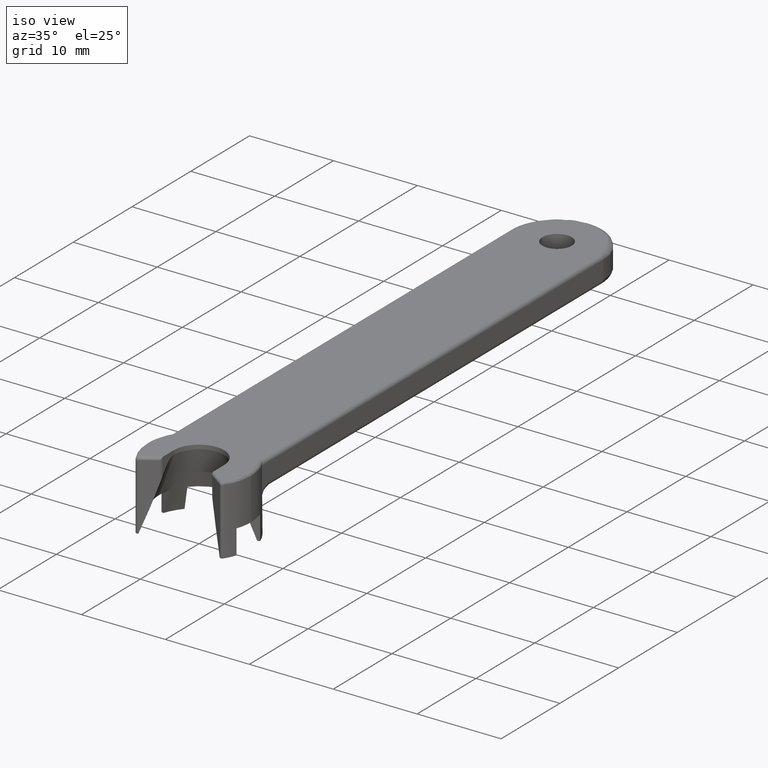
[diagram: clean part render]
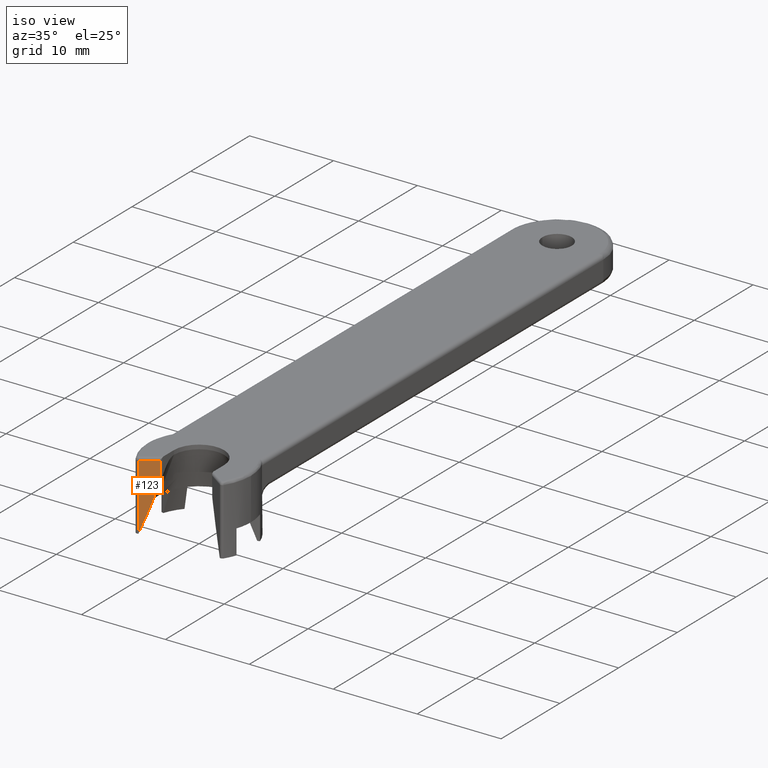
[diagram: same view with one face highlighted and labeled with its STEP entity id]
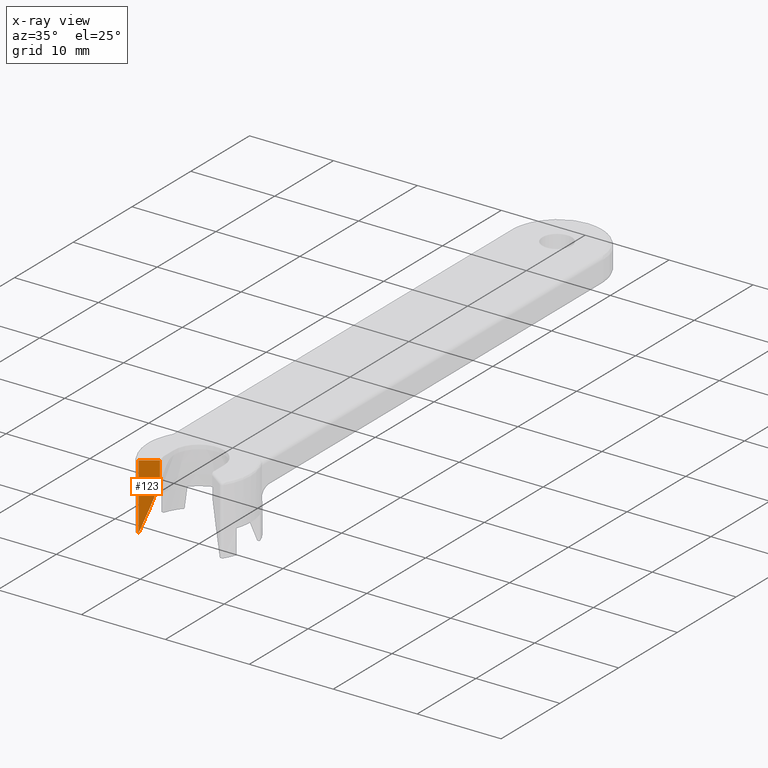
[diagram: x-ray of the same camera — body ghosted, the highlighted face saturated]
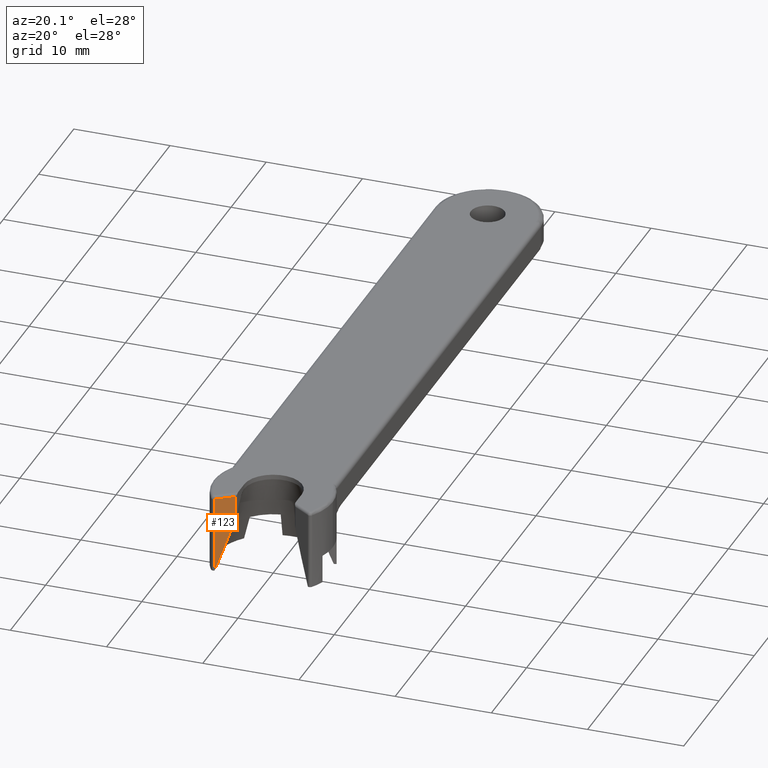
[diagram: same view with one face highlighted and labeled with its STEP entity id]
A machine part, iso view. The second image highlights one B-rep face of the part: STEP entity #123.
The next image is the same camera in x-ray: the body ghosted, the highlighted face saturated — about 0% of this face is hidden behind the body in this view.
A second angle (auxiliary view) of the same face is appended — the face is thin or edge-on in the first view.
In plain terms, the highlighted planar face has unit normal (-0.5736, 0.8192, 0).
Its self-contained STEP definition (entity closure, byte-faithful):
#123 = ADVANCED_FACE ( 'NONE', ( #2159 ), #782, .F. ) ;
#207 = LINE ( 'NONE', #1316, #269 ) ;
#236 = DIRECTION ( 'NONE',  ( -0.2801664995494923500, -0.1961746949641835800, -0.9396926207999581900 ) ) ;
#269 = VECTOR ( 'NONE', #236, 999.9999999999998900 ) ;
#349 = CARTESIAN_POINT ( 'NONE',  ( -4.826745247799452800, -3.379723407810190300, -0.3000000000615318800 ) ) ;
#368 = ORIENTED_EDGE ( 'NONE', *, *, #1975, .F. ) ;
#382 = LINE ( 'NONE', #1956, #1694 ) ;
#402 = VECTOR ( 'NONE', #1125, 1000.000000000000000 ) ;
#459 = EDGE_CURVE ( 'NONE', #1544, #1436, #701, .T. ) ;
#556 = CARTESIAN_POINT ( 'NONE',  ( -3.127927069066667200, -2.190198112649896200, -2.748793458010642800 ) ) ;
#633 = CARTESIAN_POINT ( 'NONE',  ( -4.826745247971784300, -3.379723407357909900, -8.134743755901199700 ) ) ;
#701 = LINE ( 'NONE', #1467, #402 ) ;
#723 = ORIENTED_EDGE ( 'NONE', *, *, #459, .T. ) ;
#782 = PLANE ( 'NONE',  #1029 ) ;
#788 = ORIENTED_EDGE ( 'NONE', *, *, #1669, .F. ) ;
#860 = LINE ( 'NONE', #891, #2268 ) ;
#891 = CARTESIAN_POINT ( 'NONE',  ( -3.127927069000000500, -2.190198112999999700, -4.217371877499998900 ) ) ;
#1029 = AXIS2_PLACEMENT_3D ( 'NONE', #2004, #2307, #1375 ) ;
#1050 = ORIENTED_EDGE ( 'NONE', *, *, #2013, .T. ) ;
#1125 = DIRECTION ( 'NONE',  ( -0.0000000000000000000, -0.0000000000000000000, -1.000000000000000000 ) ) ;
#1192 = VECTOR ( 'NONE', #1824, 1000.000000000000000 ) ;
#1290 = CARTESIAN_POINT ( 'NONE',  ( -3.127927068815076000, -2.190198112883328600, -0.3000000001131590800 ) ) ;
#1316 = CARTESIAN_POINT ( 'NONE',  ( -2.448869500063624500, -1.714716884261920500, -0.4712000000000000100 ) ) ;
#1320 = EDGE_CURVE ( 'NONE', #1575, #1436, #2139, .T. ) ;
#1321 = VERTEX_POINT ( 'NONE', #556 ) ;
#1375 = DIRECTION ( 'NONE',  ( 0.0000000000000000000, 0.0000000000000000000, -1.000000000000000000 ) ) ;
#1409 = EDGE_LOOP ( 'NONE', ( #723, #2100, #788, #368, #1050 ) ) ;
#1424 = DIRECTION ( 'NONE',  ( -0.8191520443400938100, -0.5735764362780648700, -0.0000000000000000000 ) ) ;
#1436 = VERTEX_POINT ( 'NONE', #633 ) ;
#1467 = CARTESIAN_POINT ( 'NONE',  ( -4.826745247992137800, -3.379723407214893200, -4.249999999999999100 ) ) ;
#1544 = VERTEX_POINT ( 'NONE', #349 ) ;
#1575 = VERTEX_POINT ( 'NONE', #1968 ) ;
#1632 = VERTEX_POINT ( 'NONE', #1290 ) ;
#1669 = EDGE_CURVE ( 'NONE', #1321, #1575, #207, .T. ) ;
#1694 = VECTOR ( 'NONE', #1424, 1000.000000000000000 ) ;
#1824 = DIRECTION ( 'NONE',  ( -0.3068597568223108700, -0.2148655148917529600, -0.9271838545581205800 ) ) ;
#1888 = CARTESIAN_POINT ( 'NONE',  ( -4.368451965386446600, -3.058822996350639000, -6.749999999999999100 ) ) ;
#1945 = DIRECTION ( 'NONE',  ( 0.0000000000000000000, 0.0000000000000000000, -1.000000000000000000 ) ) ;
#1956 = CARTESIAN_POINT ( 'NONE',  ( -3.821339703481390500, -2.675730867584554600, -0.3000000001230621000 ) ) ;
#1968 = CARTESIAN_POINT ( 'NONE',  ( -3.888561547422172200, -2.722800108423079700, -5.299999999999971400 ) ) ;
#1975 = EDGE_CURVE ( 'NONE', #1632, #1321, #860, .T. ) ;
#2004 = CARTESIAN_POINT ( 'NONE',  ( -3.127927069000000500, -2.190198112999999700, -0.3000000000000000400 ) ) ;
#2013 = EDGE_CURVE ( 'NONE', #1632, #1544, #382, .T. ) ;
#2100 = ORIENTED_EDGE ( 'NONE', *, *, #1320, .F. ) ;
#2139 = LINE ( 'NONE', #1888, #1192 ) ;
#2159 = FACE_OUTER_BOUND ( 'NONE', #1409, .T. ) ;
#2268 = VECTOR ( 'NONE', #1945, 1000.000000000000000 ) ;
#2307 = DIRECTION ( 'NONE',  ( -0.5735764363563877800, 0.8191520442852514600, 0.0000000000000000000 ) ) ;